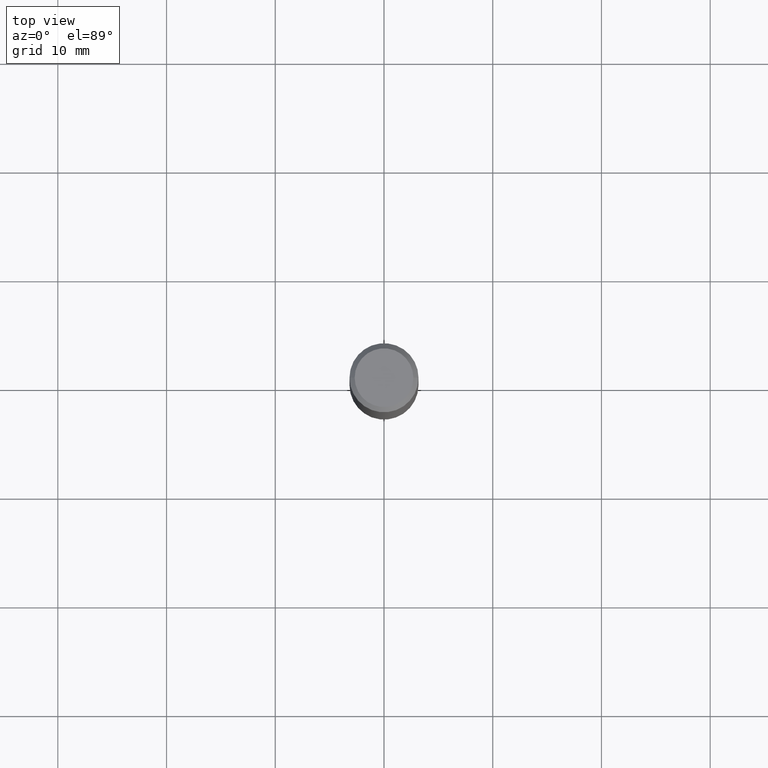
[diagram: clean part render]
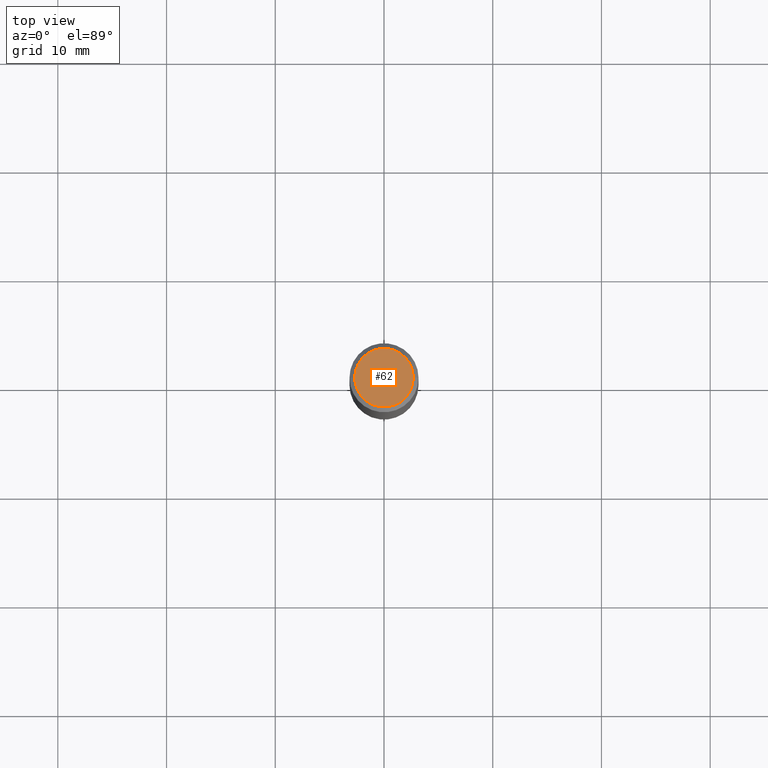
[diagram: same view with one face highlighted and labeled with its STEP entity id]
A machine part, top view. The second image highlights one B-rep face of the part: STEP entity #62.
In plain terms, the highlighted planar face has unit normal (0, -0, -1).
Its self-contained STEP definition (entity closure, byte-faithful):
#62 = ADVANCED_FACE ( 'NONE', ( #71 ), #184, .F. ) ;
#66 = DIRECTION ( 'NONE',  ( 2.438088387897960049E-29, -3.491481338843145188E-15, -1.000000000000000000 ) ) ;
#71 = FACE_OUTER_BOUND ( 'NONE', #235, .T. ) ;
#72 = DIRECTION ( 'NONE',  ( 1.000000000000000000, -6.982962677686266711E-15, 4.875930095424100059E-29 ) ) ;
#97 = VERTEX_POINT ( 'NONE', #250 ) ;
#112 = VERTEX_POINT ( 'NONE', #202 ) ;
#116 = DIRECTION ( 'NONE',  ( -2.445468806185136597E-29, 3.491481338843145583E-15, 1.000000000000000000 ) ) ;
#122 = CIRCLE ( 'NONE', #345, 0.1062499999999999972 ) ;
#163 = ORIENTED_EDGE ( 'NONE', *, *, #377, .T. ) ;
#167 = CIRCLE ( 'NONE', #237, 0.1062499999999999972 ) ;
#184 = PLANE ( 'NONE',  #269 ) ;
#202 = CARTESIAN_POINT ( 'NONE',  ( 0.1062499999999999972, -8.259777185439879685E-16, 6.505936120475796882E-18 ) ) ;
#228 = ORIENTED_EDGE ( 'NONE', *, *, #324, .T. ) ;
#235 = EDGE_LOOP ( 'NONE', ( #228, #163 ) ) ;
#237 = AXIS2_PLACEMENT_3D ( 'NONE', #375, #450, #305 ) ;
#250 = CARTESIAN_POINT ( 'NONE',  ( -0.1062499999999999972, 7.746724220558198188E-16, 6.505936120465012444E-18 ) ) ;
#269 = AXIS2_PLACEMENT_3D ( 'NONE', #488, #66, #365 ) ;
#291 = CARTESIAN_POINT ( 'NONE',  ( -1.591006383764329968E-46, 2.271535455632767580E-32, 6.505936120470314915E-18 ) ) ;
#305 = DIRECTION ( 'NONE',  ( 1.000000000000000000, -6.982962677686266711E-15, 4.875930095424100059E-29 ) ) ;
#324 = EDGE_CURVE ( 'NONE', #97, #112, #122, .T. ) ;
#345 = AXIS2_PLACEMENT_3D ( 'NONE', #291, #116, #72 ) ;
#365 = DIRECTION ( 'NONE',  ( -1.000000000000000000, 6.982962677686265922E-15, -4.876176775795935793E-29 ) ) ;
#375 = CARTESIAN_POINT ( 'NONE',  ( -1.591006383764329968E-46, 2.271535455632767580E-32, 6.505936120470314915E-18 ) ) ;
#377 = EDGE_CURVE ( 'NONE', #112, #97, #167, .T. ) ;
#450 = DIRECTION ( 'NONE',  ( -2.445468806185136597E-29, 3.491481338843145583E-15, 1.000000000000000000 ) ) ;
#488 = CARTESIAN_POINT ( 'NONE',  ( -7.955031918821649840E-47, 1.135767727816383790E-32, 3.252968060235157457E-18 ) ) ;